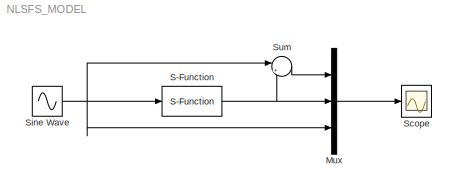
MODEL NLSFS_MODEL
KIND model
BLOCK [Mux] Mux
  DisplayOption = bar
  Inputs = 3
  Ports = [3, 1]
  SID = 5
BLOCK [S-Function] S-Function
  EnableBusSupport = off
  FunctionName = NLSFS1
  Ports = [1, 1]
  SID = 1
BLOCK [Scope] Scope
  DataFormat = StructureWithTime
  Floating = off
  NumInputPorts = 1
  Ports = [1]
  SID = 4
  SampleTime = 0
  YMax = 0.3
  YMin = -1.1
BLOCK [Sin] Sine Wave
  Ports = [0, 1]
  SID = 2
  SampleTime = 0.01
BLOCK [Sum] Sum
  IconShape = round
  InputSameDT = off
  Inputs = |+-
  OutDataTypeStr = Inherit: Inherit via internal rule
  Ports = [2, 1]
  SID = 6
  SaturateOnIntegerOverflow = off
LINE Mux:1 -> Scope:1
NET S-Function:1 -> Mux:2, Sum:2
NET Sine Wave:1 -> Mux:3, S-Function:1, Sum:1
LINE Sum:1 -> Mux:1
note: NET lines group one-source signal fan-out (src -> all destinations, sorted); 1:1 wires keep LINE
